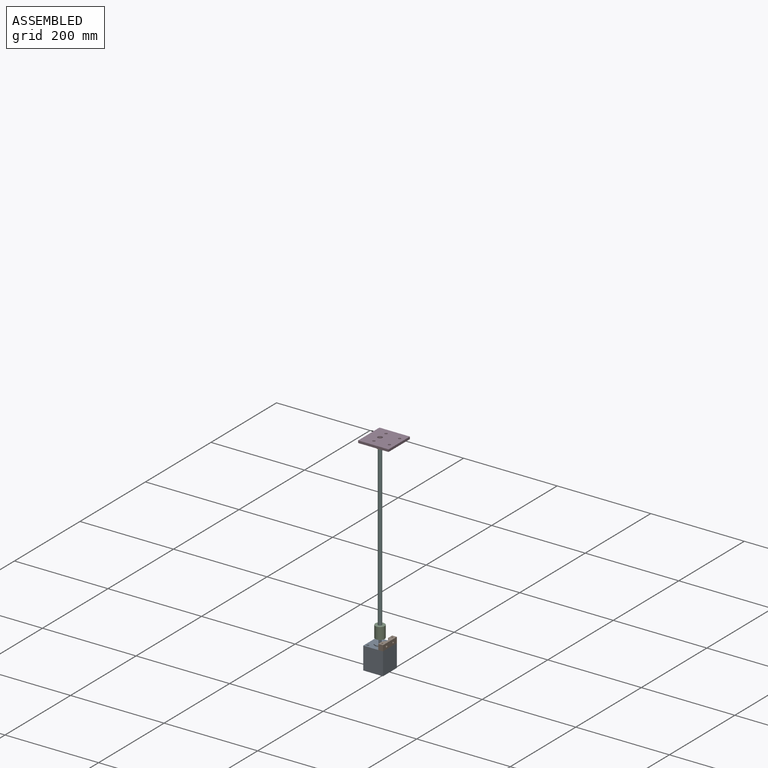
[diagram: assembled view]
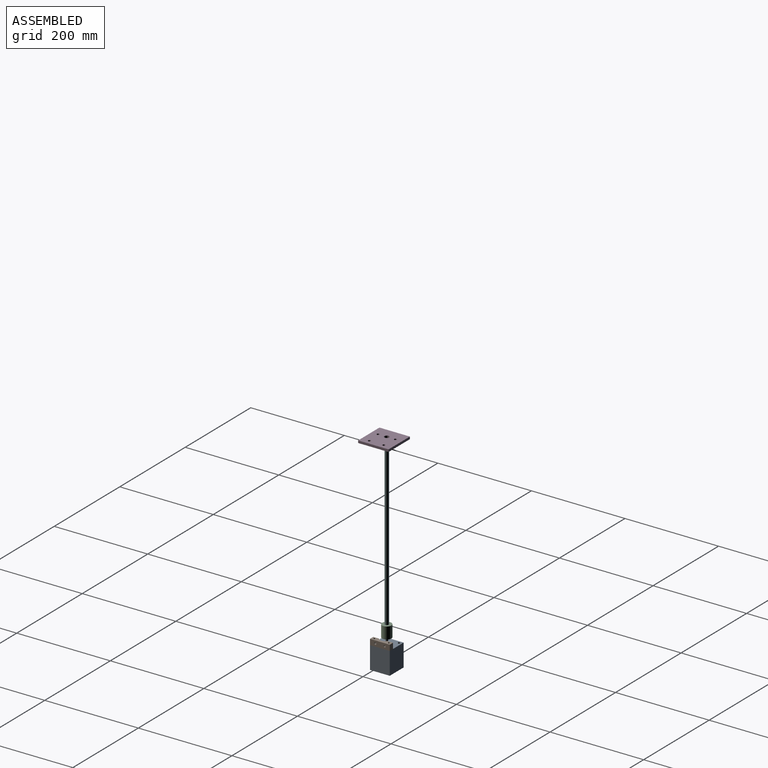
[diagram: assembled view, second angle]
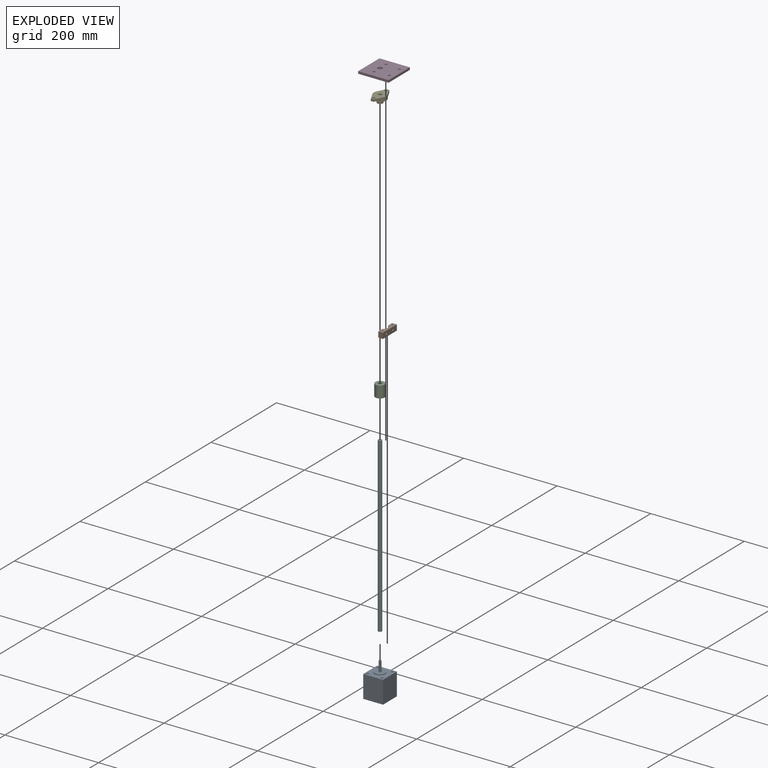
[diagram: exploded view]
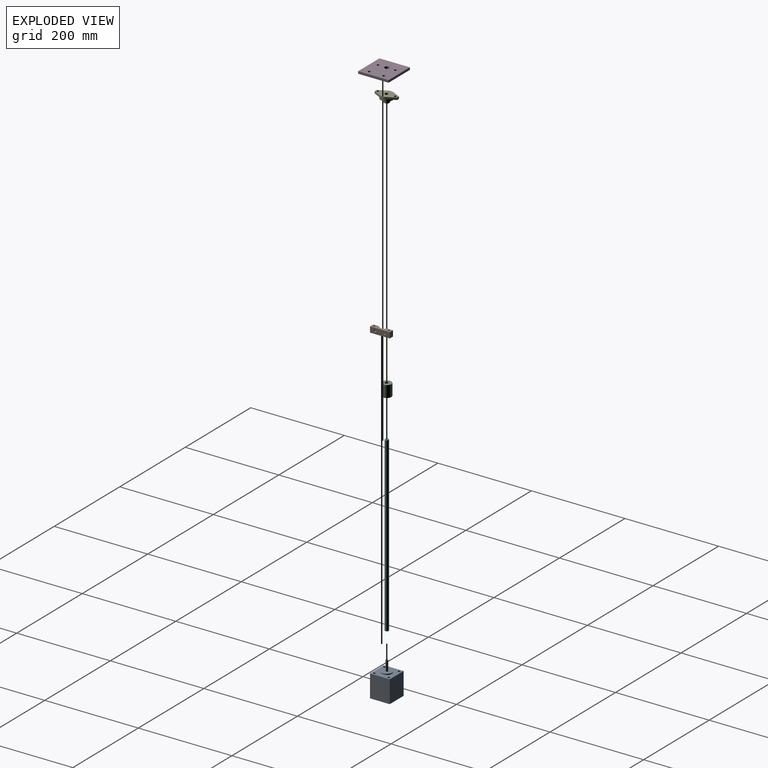
[diagram: exploded view, second angle]
ASSEMBLY  parts=6 mates=5
PART A: 18 faces, bbox 42.3x72x42.3 mm
  f0: plane 42.3x42.3mm, normal (0,-1,0), area 1330.6mm2, adj f1,f2,f3,f4,f6,f8,f10,f12
  f1: plane 48x42.3mm, normal (-1,0,0), area 2030.4mm2, adj f0,f2,f4,f5
  f2: plane 48x42.3mm, normal (0,0,-1), area 2030.4mm2, adj f0,f1,f3,f5
  f3: plane 48x42.3mm, normal (1,0,0), area 2030.4mm2, adj f0,f2,f4,f5
  f4: plane 48x42.3mm, normal (0,0,1), area 2030.4mm2, adj f0,f1,f3,f5
  f5: plane 42.3x42.3mm, normal (0,1,0), area 1789.3mm2, adj f1,f2,f3,f4
  f6: cylinder r=2.5mm len=5mm, axis (0,-1,0), area 78.5mm2, adj f0,f7
  f7: plane 5x5mm, normal (0,-1,0), area 19.6mm2, adj f6
  f8: cylinder r=2.5mm len=5mm, axis (0,-1,0), area 78.5mm2, adj f0,f9
  f9: plane 5x5mm, normal (0,-1,0), area 19.6mm2, adj f8
  f10: cylinder r=2.5mm len=5mm, axis (0,-1,0), area 78.5mm2, adj f0,f11
  f11: plane 5x5mm, normal (0,-1,0), area 19.6mm2, adj f10
  f12: cylinder r=2.5mm len=5mm, axis (0,-1,0), area 78.5mm2, adj f0,f13
  f13: plane 5x5mm, normal (0,-1,0), area 19.6mm2, adj f12
  f14: cylinder r=11mm len=22mm, axis (0,1,0), area 138.2mm2, adj f0,f15
  f15: plane 22x22mm, normal (0,-1,0), area 360.5mm2, adj f14,f16
  f16: cylinder r=2.5mm len=22mm, axis (0,1,0), area 345.6mm2, adj f15,f17
  f17: plane 5x5mm, normal (0,-1,0), area 19.6mm2, adj f16
PART B: 12 faces, bbox 10x42.3x12 mm
  f0: plane 12x10mm, normal (0,1,0), area 120mm2, adj f1,f7,f8,f9
  f1: plane 12.49x12mm, normal (-1,0,0), area 138.9mm2, adj f0,f2,f8,f9,f11
  f2: cylinder r=10mm len=17.32mm, axis (0,0,-1), area 244.8mm2, adj f1,f3,f8,f9,f10,f11
  f3: plane 12.49x12mm, normal (-1,0,0), area 136.2mm2, adj f2,f4,f8,f9,f10
  f4: plane 12x10mm, normal (0,-1,0), area 120mm2, adj f3,f7,f8,f9
  f5: cylinder r=1.75mm len=12mm, axis (0,0,-1), area 131.9mm2, adj f8,f9
  f6: cylinder r=1.75mm len=12mm, axis (0,0,-1), area 131.9mm2, adj f8,f9
  f7: plane 42.3x12mm, normal (1,0,0), area 479.4mm2, adj f0,f4,f8,f9,f10,f11
  f8: plane 42.3x10mm, normal (0,0,1), area 342.3mm2, adj f0,f1,f2,f3,f4,f5,f6,f7
  f9: plane 42.3x10mm, normal (0,0,-1), area 342.3mm2, adj f0,f1,f2,f3,f4,f5,f6,f7
  f10: cylinder r=2.26mm len=10mm, axis (1,0,0), area 138.1mm2, adj f2,f3,f7
  f11: cylinder r=1.97mm len=10mm, axis (1,0,0), area 121.7mm2, adj f1,f2,f7
PART C: 7 faces, bbox 20x25x20 mm
  f0: cylinder r=10mm len=25mm, axis (0,1,0), area 1570.8mm2, adj f1,f2
  f1: plane 20x20mm, normal (0,-1,0), area 294.5mm2, adj f0,f3
  f2: plane 20x20mm, normal (0,1,0), area 263.9mm2, adj f0,f5
  f3: cylinder r=2.5mm len=12mm, axis (0,-1,0), area 188.5mm2, adj f1,f4
  f4: plane 5x5mm, normal (0,-1,0), area 19.6mm2, adj f3
  f5: cylinder r=4mm len=12mm, axis (0,1,0), area 301.6mm2, adj f2,f6
  f6: plane 8x8mm, normal (0,1,0), area 50.3mm2, adj f5
PART D: 11 faces, bbox 65x65x5 mm
  f0: plane 65x5mm, normal (1,0,0), area 325mm2, adj f1,f3,f4,f5
  f1: plane 65x65mm, normal (0,0,1), area 4051.4mm2, adj f0,f2,f4,f5,f6,f7,f8,f9
  f2: plane 65x5mm, normal (-1,0,0), area 325mm2, adj f1,f3,f4,f5
  f3: plane 65x65mm, normal (0,0,-1), area 4051.4mm2, adj f0,f2,f4,f5,f6,f7,f8,f9
  f4: plane 65x5mm, normal (0,1,0), area 325mm2, adj f0,f1,f2,f3
  f5: plane 65x5mm, normal (0,-1,0), area 325mm2, adj f0,f1,f2,f3
  f6: cylinder r=2.75mm len=5.5mm, axis (0,0,-1), area 86.4mm2, adj f1,f3
  f7: cylinder r=5mm len=10mm, axis (0,0,-1), area 157.1mm2, adj f1,f3
  f8: cylinder r=2.75mm len=5.5mm, axis (0,0,-1), area 86.4mm2, adj f1,f3
  f9: cylinder r=2.75mm len=5.5mm, axis (0,0,-1), area 86.4mm2, adj f1,f3
  f10: cylinder r=2.75mm len=5.5mm, axis (0,0,-1), area 86.4mm2, adj f1,f3
PART E: 16 faces, bbox 48x27x16 mm
  f0: cylinder r=13.5mm len=27mm, axis (0,0,-1), area 453mm2, adj f3,f4,f6,f8,f10,f12,f13,f15
  f1: plane 12x12mm, normal (0,0,1), area 62.8mm2, adj f2,f14
  f2: cylinder r=4mm len=16mm, axis (0,0,-1), area 402.1mm2, adj f1,f3
  f3: plane 48x27mm, normal (0,0,-1), area 758.6mm2, adj f0,f2,f4,f5,f6,f7,f9,f10
  f4: plane 17.91x9.05mm, normal (0.45,-0.89,0), area 90.3mm2, adj f0,f3,f5,f8
  f5: plane 6x4.5mm, normal (1,0,0), area 27mm2, adj f3,f4,f6,f8
  f6: plane 17.91x9.05mm, normal (0.45,0.89,0), area 90.3mm2, adj f0,f3,f5,f8
  f7: cylinder r=2.75mm len=5.5mm, axis (0,0,-1), area 77.8mm2, adj f3,f8
  f8: plane 24.1x17.91mm, normal (0,0,1), area 118.1mm2, adj f0,f4,f5,f6,f7
  f9: plane 6x4.5mm, normal (-1,0,0), area 27mm2, adj f3,f10,f12,f13
  f10: plane 17.91x9.05mm, normal (-0.45,-0.89,0), area 90.3mm2, adj f0,f3,f9,f13
  f11: cylinder r=2.75mm len=5.5mm, axis (0,0,-1), area 77.8mm2, adj f3,f13
  f12: plane 17.91x9.05mm, normal (-0.45,0.89,0), area 90.3mm2, adj f0,f3,f9,f13
  f13: plane 24.1x17.91mm, normal (0,0,1), area 118.1mm2, adj f0,f9,f10,f11,f12
  f14: cylinder r=6mm len=12mm, axis (0,0,1), area 282.7mm2, adj f1,f15
  f15: plane 27x27mm, normal (0,0,1), area 459.5mm2, adj f0,f14
PART F: 3 faces, bbox 8x8x369 mm
  f0: cylinder r=4mm len=369mm, axis (0,0,-1), area 9274mm2, adj f1,f2
  f1: plane 8x8mm, normal (0,0,1), area 50.3mm2, adj f0
  f2: plane 8x8mm, normal (0,0,-1), area 50.3mm2, adj f0
PLACE A rot(axis=(-1,0,0),90deg) t=(57.58,91.41,-152.26)mm
PLACE B t=(78.73,70.26,-152.26)mm
PLACE C rot(axis=(1,0,0),90deg) t=(57.58,91.41,-126.76)mm
PLACE D rot(axis=(-1,0,0),180deg) t=(98.58,123.91,247.74)mm
PLACE E rot(axis=(0.71,-0.71,0),180deg) t=(57.58,91.41,242.74)mm
PLACE F t=(57.58,91.41,-126.26)mm
MATE fastened D.f9 <-> E.f7  axis (0,0,1) through (57.58,72.91,242.74)mm
MATE fastened C.f0 <-> F.f0  axis (0,0,1) through (57.58,91.41,-126.26)mm
MATE fastened A.f8 <-> B.f5  axis (0,0,1) through (73.08,106.91,-152.26)mm
MATE fastened E.f0 <-> F.f0  axis (0,0,1) through (57.58,91.41,242.74)mm
MATE fastened C.f0 <-> A.f14  axis (0,0,-1) through (57.58,91.41,-127.26)mm
